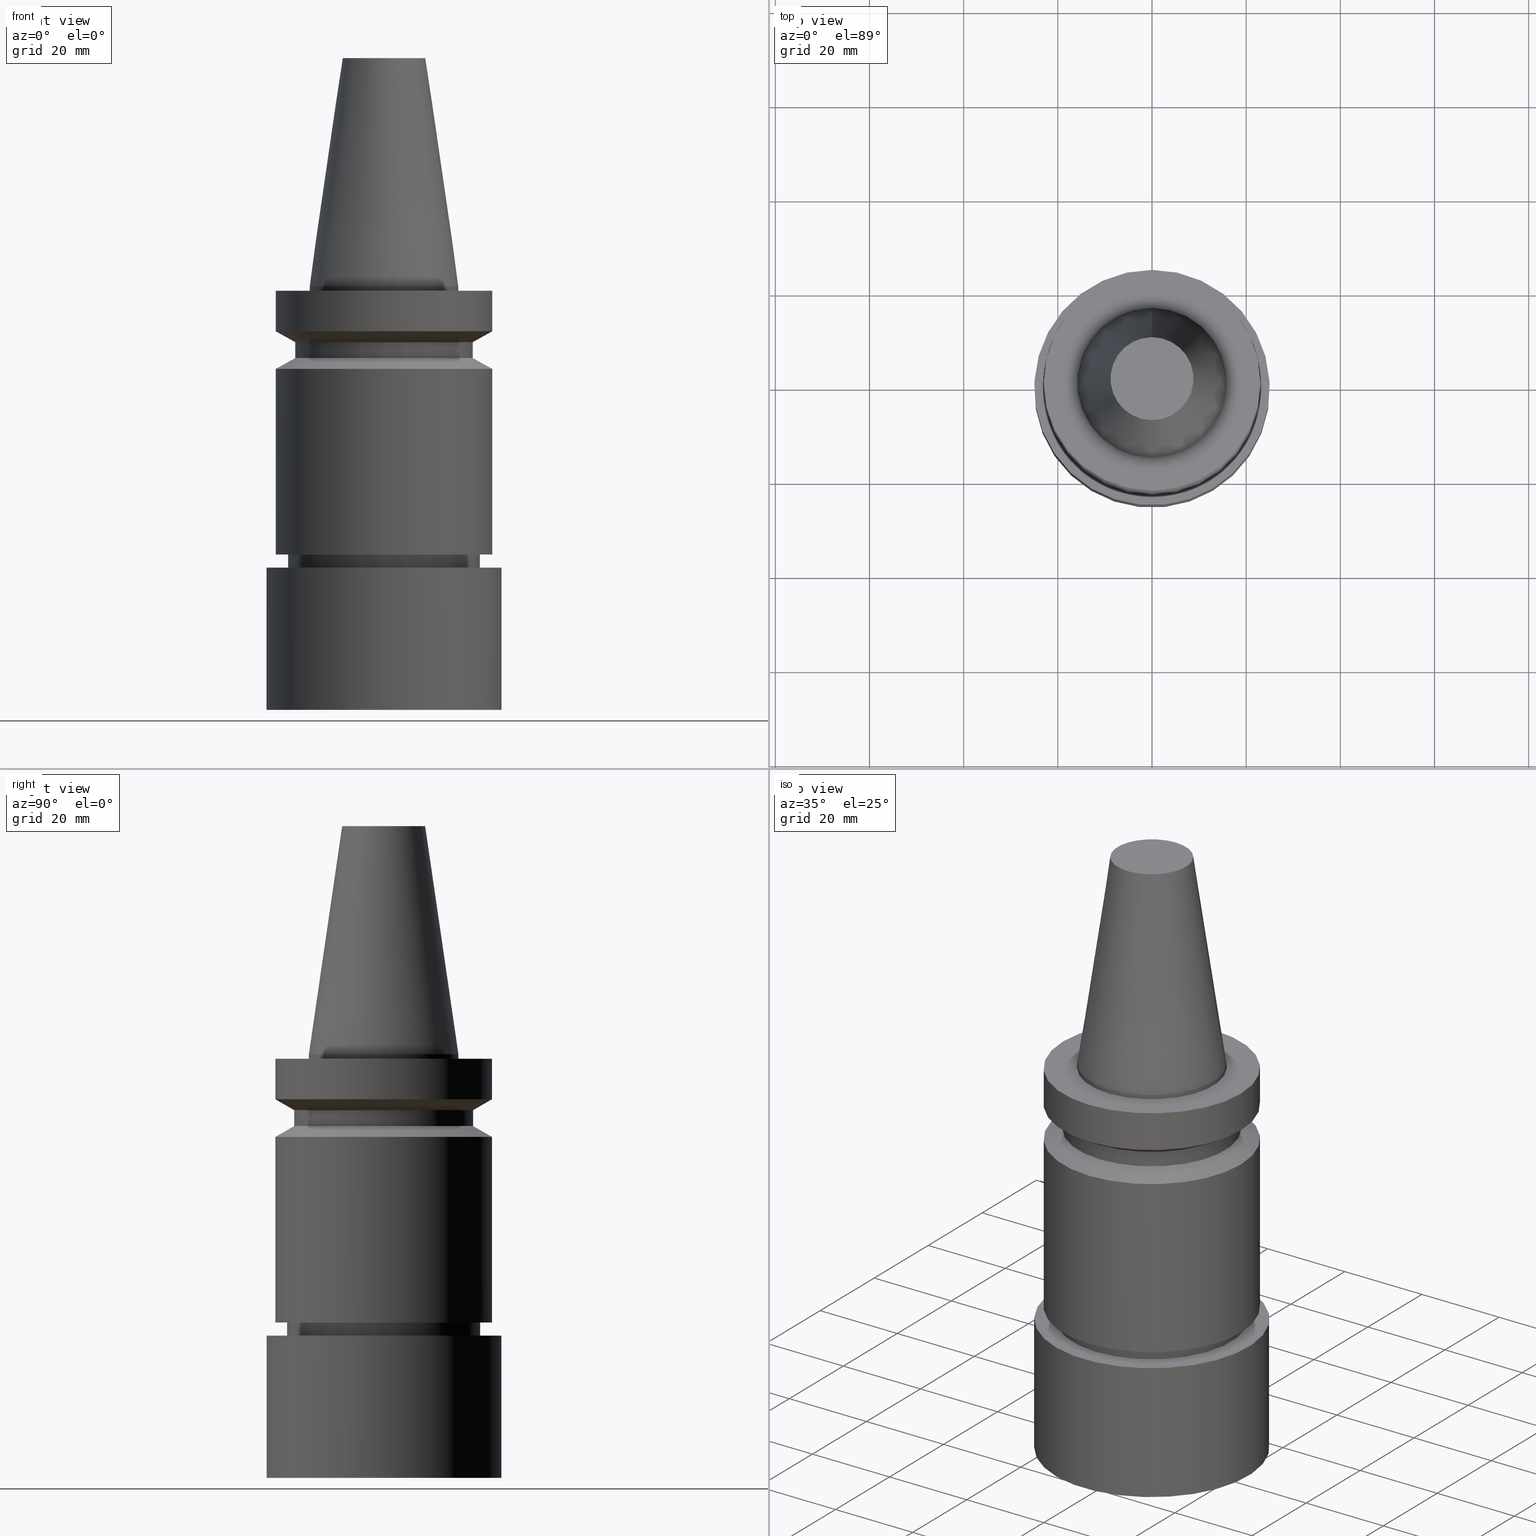
[diagram: canonical four-view strip — front | top / right | iso, engineering-drawing reading convention]
A machine part, canonical four-view strip (front | top / right | iso — engineering-drawing reading convention). The complete STEP part file that produces these views, byte-faithful:
ISO-10303-21;
HEADER;
FILE_DESCRIPTION((''),'1');
FILE_NAME('V:/90_\X2\53D65F9730C730FC30BF\X0\/00_\X2\6DE18DEF30C730FC30BF\X0\/ALL/BBT-BKUS\X2\FF76FF80FF9BFF78FF9E752852A05DE556F3\X0\201801/BBT30-MEGAER/BBT30-MEGAER32-90NL.stp','2018-02-02T07:34:31',(''),(''),'Spatial Interop R21 SP3','Kubotek KeyCreator 2011 V10.0.2 (22737)',' ');
FILE_SCHEMA(('automotive_design'));
ENDSEC;
DATA;
#1=MECHANICAL_DESIGN_GEOMETRIC_PRESENTATION_REPRESENTATION(' ',(#14,#15,#16,#17,#18,#19,#20,#21,#22,#23,#24,#25,#26,#27,#28,#29,#30,#31,#32,#33,#34,#35,#36,#37,#38,#39,#40,#41,#42,#43,#44,#45,#46,#47,#48,#49),#10);
#2=PRODUCT_DEFINITION_CONTEXT('',#50,'design');
#3=APPLICATION_PROTOCOL_DEFINITION('INTERNATIONAL STANDARD','automotive_design',1994,#50);
#4=PRODUCT_CATEGORY_RELATIONSHIP('NONE','NONE',#51,#52);
#5=SHAPE_DEFINITION_REPRESENTATION(#53,#54);
#6=PRODUCT_DEFINITION_CONTEXT('',#55,'design');
#7=APPLICATION_PROTOCOL_DEFINITION('INTERNATIONAL STANDARD','automotive_design',1994,#55);
#8=PRODUCT_CATEGORY_RELATIONSHIP('NONE','NONE',#56,#57);
#9=SHAPE_DEFINITION_REPRESENTATION(#58,#59);
#10= (GEOMETRIC_REPRESENTATION_CONTEXT(3)GLOBAL_UNCERTAINTY_ASSIGNED_CONTEXT((#62))GLOBAL_UNIT_ASSIGNED_CONTEXT((#64,#65,#66))REPRESENTATION_CONTEXT('NONE','WORKSPACE'));
#14=STYLED_ITEM('',(#68,#69),#70);
#15=STYLED_ITEM('',(#71,#72),#73);
#16=STYLED_ITEM('',(#74),#75);
#17=STYLED_ITEM('',(#76),#77);
#18=STYLED_ITEM('',(#78,#79),#80);
#19=STYLED_ITEM('',(#81),#82);
#20=STYLED_ITEM('',(#83,#84),#85);
#21=STYLED_ITEM('',(#86,#87),#88);
#22=STYLED_ITEM('',(#89,#90),#91);
#23=STYLED_ITEM('',(#92,#93),#94);
#24=STYLED_ITEM('',(#95,#96),#97);
#25=STYLED_ITEM('',(#98,#99),#100);
#26=STYLED_ITEM('',(#101,#102),#103);
#27=STYLED_ITEM('',(#104),#105);
#28=STYLED_ITEM('',(#106,#107),#108);
#29=STYLED_ITEM('',(#109),#110);
#30=STYLED_ITEM('',(#111),#112);
#31=STYLED_ITEM('',(#113,#114),#115);
#32=STYLED_ITEM('',(#116),#117);
#33=STYLED_ITEM('',(#118),#119);
#34=STYLED_ITEM('',(#120,#121),#122);
#35=STYLED_ITEM('',(#123),#124);
#36=STYLED_ITEM('',(#125),#126);
#37=STYLED_ITEM('',(#127,#128),#129);
#38=STYLED_ITEM('',(#130),#131);
#39=STYLED_ITEM('',(#132),#133);
#40=STYLED_ITEM('',(#134),#135);
#41=STYLED_ITEM('',(#136,#137),#138);
#42=STYLED_ITEM('',(#139,#140),#141);
#43=STYLED_ITEM('',(#142),#143);
#44=STYLED_ITEM('',(#144),#145);
#45=STYLED_ITEM('',(#146),#147);
#46=STYLED_ITEM('',(#148,#149),#150);
#47=STYLED_ITEM('',(#151,#152),#153);
#48=STYLED_ITEM('',(#154,#155),#156);
#49=STYLED_ITEM('',(#157,#158),#159);
#50=APPLICATION_CONTEXT(' ');
#51=PRODUCT_CATEGORY('part','NONE');
#52=PRODUCT_RELATED_PRODUCT_CATEGORY('detail',' ',(#160));
#53=PRODUCT_DEFINITION_SHAPE('NONE','NONE',#161);
#54=ADVANCED_BREP_SHAPE_REPRESENTATION('Unnamed[1]',(#150,#162),#10);
#55=APPLICATION_CONTEXT(' ');
#56=PRODUCT_CATEGORY('part','NONE');
#57=PRODUCT_RELATED_PRODUCT_CATEGORY('detail',' ',(#163));
#58=PRODUCT_DEFINITION_SHAPE('NONE','NONE',#164);
#59=ADVANCED_BREP_SHAPE_REPRESENTATION('Unnamed[1]',(#156,#165),#10);
#62=UNCERTAINTY_MEASURE_WITH_UNIT(LENGTH_MEASURE(1.0E-006),#64,'','');
#64= (CONVERSION_BASED_UNIT('MILLIMETRE',#168)LENGTH_UNIT()NAMED_UNIT(#171));
#65= (NAMED_UNIT(#173)PLANE_ANGLE_UNIT()SI_UNIT($,.RADIAN.));
#66= (NAMED_UNIT(#173)SOLID_ANGLE_UNIT()SI_UNIT($,.STERADIAN.));
#68=PRESENTATION_STYLE_ASSIGNMENT((#179));
#69=PRESENTATION_STYLE_ASSIGNMENT((#180));
#70=ADVANCED_FACE('Unnamed[1]',(#181,#182),#183,.T.);
#71=PRESENTATION_STYLE_ASSIGNMENT((#184));
#72=PRESENTATION_STYLE_ASSIGNMENT((#185));
#73=ADVANCED_FACE('Unnamed[1]',(#186,#187),#188,.T.);
#74=PRESENTATION_STYLE_ASSIGNMENT((#189));
#75=EDGE_CURVE('Unnamed[1]',#190,#190,#191,.T.);
#76=PRESENTATION_STYLE_ASSIGNMENT((#192));
#77=EDGE_CURVE('Unnamed[1]',#193,#193,#194,.T.);
#78=PRESENTATION_STYLE_ASSIGNMENT((#195));
#79=PRESENTATION_STYLE_ASSIGNMENT((#196));
#80=ADVANCED_FACE('Unnamed[1]',(#197),#198,.T.);
#81=PRESENTATION_STYLE_ASSIGNMENT((#199));
#82=EDGE_CURVE('Unnamed[1]',#200,#200,#201,.T.);
#83=PRESENTATION_STYLE_ASSIGNMENT((#202));
#84=PRESENTATION_STYLE_ASSIGNMENT((#203));
#85=ADVANCED_FACE('Unnamed[1]',(#204,#205),#206,.T.);
#86=PRESENTATION_STYLE_ASSIGNMENT((#207));
#87=PRESENTATION_STYLE_ASSIGNMENT((#208));
#88=ADVANCED_FACE('Unnamed[1]',(#209,#210),#211,.T.);
#89=PRESENTATION_STYLE_ASSIGNMENT((#212));
#90=PRESENTATION_STYLE_ASSIGNMENT((#213));
#91=ADVANCED_FACE('Unnamed[1]',(#214,#215),#216,.T.);
#92=PRESENTATION_STYLE_ASSIGNMENT((#217));
#93=PRESENTATION_STYLE_ASSIGNMENT((#218));
#94=ADVANCED_FACE('Unnamed[1]',(#219),#220,.T.);
#95=PRESENTATION_STYLE_ASSIGNMENT((#221));
#96=PRESENTATION_STYLE_ASSIGNMENT((#222));
#97=ADVANCED_FACE('Unnamed[1]',(#223,#224),#225,.T.);
#98=PRESENTATION_STYLE_ASSIGNMENT((#226));
#99=PRESENTATION_STYLE_ASSIGNMENT((#227));
#100=ADVANCED_FACE('Unnamed[1]',(#228,#229),#230,.T.);
#101=PRESENTATION_STYLE_ASSIGNMENT((#231));
#102=PRESENTATION_STYLE_ASSIGNMENT((#232));
#103=ADVANCED_FACE('Unnamed[1]',(#233,#234),#235,.T.);
#104=PRESENTATION_STYLE_ASSIGNMENT((#236));
#105=EDGE_CURVE('Unnamed[1]',#237,#237,#238,.T.);
#106=PRESENTATION_STYLE_ASSIGNMENT((#239));
#107=PRESENTATION_STYLE_ASSIGNMENT((#240));
#108=ADVANCED_FACE('Unnamed[1]',(#241),#242,.T.);
#109=PRESENTATION_STYLE_ASSIGNMENT((#243));
#110=EDGE_CURVE('Unnamed[1]',#244,#244,#245,.T.);
#111=PRESENTATION_STYLE_ASSIGNMENT((#246));
#112=EDGE_CURVE('Unnamed[1]',#247,#247,#248,.T.);
#113=PRESENTATION_STYLE_ASSIGNMENT((#249));
#114=PRESENTATION_STYLE_ASSIGNMENT((#250));
#115=ADVANCED_FACE('Unnamed[1]',(#251,#252),#253,.T.);
#116=PRESENTATION_STYLE_ASSIGNMENT((#254));
#117=EDGE_CURVE('Unnamed[1]',#255,#255,#256,.T.);
#118=PRESENTATION_STYLE_ASSIGNMENT((#257));
#119=EDGE_CURVE('Unnamed[1]',#258,#258,#259,.T.);
#120=PRESENTATION_STYLE_ASSIGNMENT((#260));
#121=PRESENTATION_STYLE_ASSIGNMENT((#261));
#122=ADVANCED_FACE('Unnamed[1]',(#262,#263),#264,.T.);
#123=PRESENTATION_STYLE_ASSIGNMENT((#265));
#124=EDGE_CURVE('Unnamed[1]',#266,#266,#267,.T.);
#125=PRESENTATION_STYLE_ASSIGNMENT((#268));
#126=EDGE_CURVE('Unnamed[1]',#269,#269,#270,.T.);
#127=PRESENTATION_STYLE_ASSIGNMENT((#271));
#128=PRESENTATION_STYLE_ASSIGNMENT((#272));
#129=ADVANCED_FACE('Unnamed[1]',(#273,#274),#275,.T.);
#130=PRESENTATION_STYLE_ASSIGNMENT((#276));
#131=EDGE_CURVE('Unnamed[1]',#277,#277,#278,.T.);
#132=PRESENTATION_STYLE_ASSIGNMENT((#279));
#133=EDGE_CURVE('Unnamed[1]',#280,#280,#281,.T.);
#134=PRESENTATION_STYLE_ASSIGNMENT((#282));
#135=EDGE_CURVE('Unnamed[1]',#283,#283,#284,.T.);
#136=PRESENTATION_STYLE_ASSIGNMENT((#285));
#137=PRESENTATION_STYLE_ASSIGNMENT((#286));
#138=ADVANCED_FACE('Unnamed[1]',(#287,#288),#289,.T.);
#139=PRESENTATION_STYLE_ASSIGNMENT((#290));
#140=PRESENTATION_STYLE_ASSIGNMENT((#291));
#141=ADVANCED_FACE('Unnamed[1]',(#292),#293,.T.);
#142=PRESENTATION_STYLE_ASSIGNMENT((#294));
#143=EDGE_CURVE('Unnamed[1]',#295,#295,#296,.T.);
#144=PRESENTATION_STYLE_ASSIGNMENT((#297));
#145=EDGE_CURVE('Unnamed[1]',#298,#298,#299,.T.);
#146=PRESENTATION_STYLE_ASSIGNMENT((#300));
#147=EDGE_CURVE('Unnamed[1]',#301,#301,#302,.T.);
#148=PRESENTATION_STYLE_ASSIGNMENT((#303));
#149=PRESENTATION_STYLE_ASSIGNMENT((#304));
#150=MANIFOLD_SOLID_BREP('Unnamed[1]',#305);
#151=PRESENTATION_STYLE_ASSIGNMENT((#306));
#152=PRESENTATION_STYLE_ASSIGNMENT((#307));
#153=ADVANCED_FACE('Unnamed[1]',(#308,#309),#310,.T.);
#154=PRESENTATION_STYLE_ASSIGNMENT((#311));
#155=PRESENTATION_STYLE_ASSIGNMENT((#312));
#156=MANIFOLD_SOLID_BREP('Unnamed[1]',#313);
#157=PRESENTATION_STYLE_ASSIGNMENT((#314));
#158=PRESENTATION_STYLE_ASSIGNMENT((#315));
#159=ADVANCED_FACE('Unnamed[1]',(#316,#317),#318,.T.);
#160=PRODUCT('Unnamed[1]','Unnamed[1]','PART-Unnamed[1]-DESC',(#319));
#161=PRODUCT_DEFINITION('NONE','NONE',#320,#2);
#162=AXIS2_PLACEMENT_3D('',#321,#322,#323);
#163=PRODUCT('Unnamed[1]','Unnamed[1]','PART-Unnamed[1]-DESC',(#324));
#164=PRODUCT_DEFINITION('NONE','NONE',#325,#6);
#165=AXIS2_PLACEMENT_3D('',#326,#327,#328);
#168=LENGTH_MEASURE_WITH_UNIT(LENGTH_MEASURE(1.0),#329);
#171=DIMENSIONAL_EXPONENTS(1.0,0.0,0.0,0.0,0.0,0.0,0.0);
#173=DIMENSIONAL_EXPONENTS(0.0,0.0,0.0,0.0,0.0,0.0,0.0);
#179=SURFACE_STYLE_USAGE(.BOTH.,#330);
#180=CURVE_STYLE('',#331,POSITIVE_LENGTH_MEASURE(1000.0),#332);
#181=FACE_BOUND('',#333,.T.);
#182=FACE_BOUND('',#334,.T.);
#183=CYLINDRICAL_SURFACE('',#335,23.0);
#184=SURFACE_STYLE_USAGE(.BOTH.,#336);
#185=CURVE_STYLE('',#337,POSITIVE_LENGTH_MEASURE(1000.0),#338);
#186=FACE_BOUND('',#339,.T.);
#187=FACE_BOUND('',#340,.T.);
#188=CYLINDRICAL_SURFACE('',#341,20.4999999999961);
#189=CURVE_STYLE('',#342,POSITIVE_LENGTH_MEASURE(1000.0),#343);
#190=VERTEX_POINT('',#344);
#191=CIRCLE('',#345,20.0);
#192=CURVE_STYLE('',#346,POSITIVE_LENGTH_MEASURE(1000.0),#347);
#193=VERTEX_POINT('',#348);
#194=CIRCLE('',#349,18.8999999999996);
#195=SURFACE_STYLE_USAGE(.BOTH.,#350);
#196=CURVE_STYLE('',#351,POSITIVE_LENGTH_MEASURE(1000.0),#352);
#197=FACE_OUTER_BOUND('',#353,.T.);
#198=PLANE('',#354);
#199=CURVE_STYLE('',#355,POSITIVE_LENGTH_MEASURE(1000.0),#356);
#200=VERTEX_POINT('',#357);
#201=CIRCLE('',#358,25.0);
#202=SURFACE_STYLE_USAGE(.BOTH.,#359);
#203=CURVE_STYLE('',#360,POSITIVE_LENGTH_MEASURE(1000.0),#361);
#204=FACE_BOUND('',#362,.T.);
#205=FACE_BOUND('',#363,.T.);
#206=CYLINDRICAL_SURFACE('',#364,23.0);
#207=SURFACE_STYLE_USAGE(.BOTH.,#365);
#208=CURVE_STYLE('',#366,POSITIVE_LENGTH_MEASURE(1000.0),#367);
#209=FACE_BOUND('',#368,.T.);
#210=FACE_BOUND('',#369,.T.);
#211=CYLINDRICAL_SURFACE('',#370,20.0000000000001);
#212=SURFACE_STYLE_USAGE(.BOTH.,#371);
#213=CURVE_STYLE('',#372,POSITIVE_LENGTH_MEASURE(1000.0),#373);
#214=FACE_BOUND('',#374,.T.);
#215=FACE_BOUND('',#375,.T.);
#216=CYLINDRICAL_SURFACE('',#376,19.0);
#217=SURFACE_STYLE_USAGE(.BOTH.,#377);
#218=CURVE_STYLE('',#378,POSITIVE_LENGTH_MEASURE(1000.0),#379);
#219=FACE_OUTER_BOUND('',#380,.T.);
#220=PLANE('',#381);
#221=SURFACE_STYLE_USAGE(.BOTH.,#382);
#222=CURVE_STYLE('',#383,POSITIVE_LENGTH_MEASURE(1000.0),#384);
#223=FACE_BOUND('',#385,.T.);
#224=FACE_BOUND('',#386,.T.);
#225=CONICAL_SURFACE('',#387,19.4499999999998,0.523598775598219);
#226=SURFACE_STYLE_USAGE(.BOTH.,#388);
#227=CURVE_STYLE('',#389,POSITIVE_LENGTH_MEASURE(1000.0),#390);
#228=FACE_BOUND('',#391,.T.);
#229=FACE_BOUND('',#392,.T.);
#230=CYLINDRICAL_SURFACE('',#393,25.0);
#231=SURFACE_STYLE_USAGE(.BOTH.,#394);
#232=CURVE_STYLE('',#395,POSITIVE_LENGTH_MEASURE(1000.0),#396);
#233=FACE_BOUND('',#397,.T.);
#234=FACE_BOUND('',#398,.T.);
#235=CONICAL_SURFACE('',#399,21.0,1.04719755058881);
#236=CURVE_STYLE('',#400,POSITIVE_LENGTH_MEASURE(1000.0),#401);
#237=VERTEX_POINT('',#402);
#238=CIRCLE('',#403,19.0);
#239=SURFACE_STYLE_USAGE(.BOTH.,#404);
#240=CURVE_STYLE('',#405,POSITIVE_LENGTH_MEASURE(1000.0),#406);
#241=FACE_OUTER_BOUND('',#407,.T.);
#242=PLANE('',#408);
#243=CURVE_STYLE('',#409,POSITIVE_LENGTH_MEASURE(1000.0),#410);
#244=VERTEX_POINT('',#411);
#245=CIRCLE('',#412,15.875);
#246=CURVE_STYLE('',#413,POSITIVE_LENGTH_MEASURE(1000.0),#414);
#247=VERTEX_POINT('',#415);
#248=CIRCLE('',#416,23.0);
#249=SURFACE_STYLE_USAGE(.BOTH.,#417);
#250=CURVE_STYLE('',#418,POSITIVE_LENGTH_MEASURE(1000.0),#419);
#251=FACE_BOUND('',#420,.T.);
#252=FACE_OUTER_BOUND('',#421,.T.);
#253=PLANE('',#422);
#254=CURVE_STYLE('',#423,POSITIVE_LENGTH_MEASURE(1000.0),#424);
#255=VERTEX_POINT('',#425);
#256=CIRCLE('',#426,8.81650000198669);
#257=CURVE_STYLE('',#427,POSITIVE_LENGTH_MEASURE(1000.0),#428);
#258=VERTEX_POINT('',#429);
#259=CIRCLE('',#430,23.0);
#260=SURFACE_STYLE_USAGE(.BOTH.,#431);
#261=CURVE_STYLE('',#432,POSITIVE_LENGTH_MEASURE(1000.0),#433);
#262=FACE_BOUND('',#434,.T.);
#263=FACE_BOUND('',#435,.T.);
#264=CONICAL_SURFACE('',#436,12.3457500009933,0.144815870013618);
#265=CURVE_STYLE('',#437,POSITIVE_LENGTH_MEASURE(1000.0),#438);
#266=VERTEX_POINT('',#439);
#267=CIRCLE('',#440,25.0);
#268=CURVE_STYLE('',#441,POSITIVE_LENGTH_MEASURE(1000.0),#442);
#269=VERTEX_POINT('',#443);
#270=CIRCLE('',#444,23.0);
#271=SURFACE_STYLE_USAGE(.BOTH.,#445);
#272=CURVE_STYLE('',#446,POSITIVE_LENGTH_MEASURE(1000.0),#447);
#273=FACE_BOUND('',#448,.T.);
#274=FACE_BOUND('',#449,.T.);
#275=CYLINDRICAL_SURFACE('',#450,15.875);
#276=CURVE_STYLE('',#451,POSITIVE_LENGTH_MEASURE(1000.0),#452);
#277=VERTEX_POINT('',#453);
#278=CIRCLE('',#454,20.4999999999911);
#279=CURVE_STYLE('',#455,POSITIVE_LENGTH_MEASURE(1000.0),#456);
#280=VERTEX_POINT('',#457);
#281=CIRCLE('',#458,15.875);
#282=CURVE_STYLE('',#459,POSITIVE_LENGTH_MEASURE(1000.0),#460);
#283=VERTEX_POINT('',#461);
#284=CIRCLE('',#462,20.0000000000001);
#285=SURFACE_STYLE_USAGE(.BOTH.,#463);
#286=CURVE_STYLE('',#464,POSITIVE_LENGTH_MEASURE(1000.0),#465);
#287=FACE_BOUND('',#466,.T.);
#288=FACE_BOUND('',#467,.T.);
#289=CONICAL_SURFACE('',#468,21.0,1.04719755058882);
#290=SURFACE_STYLE_USAGE(.BOTH.,#469);
#291=CURVE_STYLE('',#470,POSITIVE_LENGTH_MEASURE(1000.0),#471);
#292=FACE_OUTER_BOUND('',#472,.T.);
#293=PLANE('',#473);
#294=CURVE_STYLE('',#474,POSITIVE_LENGTH_MEASURE(1000.0),#475);
#295=VERTEX_POINT('',#476);
#296=CIRCLE('',#477,19.0);
#297=CURVE_STYLE('',#478,POSITIVE_LENGTH_MEASURE(1000.0),#479);
#298=VERTEX_POINT('',#480);
#299=CIRCLE('',#481,23.0);
#300=CURVE_STYLE('',#482,POSITIVE_LENGTH_MEASURE(1000.0),#483);
#301=VERTEX_POINT('',#484);
#302=CIRCLE('',#485,20.5000000000012);
#303=SURFACE_STYLE_USAGE(.BOTH.,#486);
#304=CURVE_STYLE('',#487,POSITIVE_LENGTH_MEASURE(1000.0),#488);
#305=CLOSED_SHELL('',(#94,#122,#129,#159,#70,#103,#91,#138,#85,#115,#73,#153,#88,#97,#141));
#306=SURFACE_STYLE_USAGE(.BOTH.,#489);
#307=CURVE_STYLE('',#490,POSITIVE_LENGTH_MEASURE(1000.0),#491);
#308=FACE_BOUND('',#492,.T.);
#309=FACE_BOUND('',#493,.T.);
#310=CONICAL_SURFACE('',#494,20.2500000000006,1.04719755120247);
#311=SURFACE_STYLE_USAGE(.BOTH.,#495);
#312=CURVE_STYLE('',#496,POSITIVE_LENGTH_MEASURE(1000.0),#497);
#313=CLOSED_SHELL('',(#108,#80,#100));
#314=SURFACE_STYLE_USAGE(.BOTH.,#498);
#315=CURVE_STYLE('',#499,POSITIVE_LENGTH_MEASURE(1000.0),#500);
#316=FACE_OUTER_BOUND('',#501,.T.);
#317=FACE_BOUND('',#502,.T.);
#318=PLANE('',#503);
#319=PRODUCT_CONTEXT('',#50,'mechanical');
#320=PRODUCT_DEFINITION_FORMATION_WITH_SPECIFIED_SOURCE(' ','NONE',#160,.NOT_KNOWN.);
#321=CARTESIAN_POINT('',(0.0,0.0,0.0));
#322=DIRECTION('',(0.0,0.0,1.0));
#323=DIRECTION('',(1.0,0.0,0.0));
#324=PRODUCT_CONTEXT('',#55,'mechanical');
#325=PRODUCT_DEFINITION_FORMATION_WITH_SPECIFIED_SOURCE(' ','NONE',#163,.NOT_KNOWN.);
#326=CARTESIAN_POINT('',(0.0,0.0,0.0));
#327=DIRECTION('',(0.0,0.0,1.0));
#328=DIRECTION('',(1.0,0.0,0.0));
#329= (NAMED_UNIT(#171)LENGTH_UNIT()SI_UNIT(.MILLI.,.METRE.));
#330=SURFACE_SIDE_STYLE('',(#505));
#331=DRAUGHTING_PRE_DEFINED_CURVE_FONT('continuous');
#332=COLOUR_RGB('',0.0,1.0,0.0);
#333=EDGE_LOOP('',(#506));
#334=EDGE_LOOP('',(#507));
#335=AXIS2_PLACEMENT_3D('',#508,#509,#510);
#336=SURFACE_SIDE_STYLE('',(#511));
#337=DRAUGHTING_PRE_DEFINED_CURVE_FONT('continuous');
#338=COLOUR_RGB('',0.0,1.0,0.0);
#339=EDGE_LOOP('',(#512));
#340=EDGE_LOOP('',(#513));
#341=AXIS2_PLACEMENT_3D('',#514,#515,#516);
#342=DRAUGHTING_PRE_DEFINED_CURVE_FONT('continuous');
#343=COLOUR_RGB('',0.0,1.0,0.0);
#344=CARTESIAN_POINT('',(3.88826323563546E-015,20.0,-63.5001575693926));
#345=AXIS2_PLACEMENT_3D('',#517,#518,#519);
#346=DRAUGHTING_PRE_DEFINED_CURVE_FONT('continuous');
#347=COLOUR_RGB('',0.0,1.0,0.0);
#348=CARTESIAN_POINT('',(4.83735485663206E-015,18.8999999999996,-79.0000000000003));
#349=AXIS2_PLACEMENT_3D('',#520,#521,#522);
#350=SURFACE_SIDE_STYLE('',(#523));
#351=DRAUGHTING_PRE_DEFINED_CURVE_FONT('continuous');
#352=COLOUR_RGB('',0.0,1.0,0.0);
#353=EDGE_LOOP('',(#524));
#354=AXIS2_PLACEMENT_3D('',#525,#526,#527);
#355=DRAUGHTING_PRE_DEFINED_CURVE_FONT('continuous');
#356=COLOUR_RGB('',0.0,1.0,0.0);
#357=CARTESIAN_POINT('',(5.51091059616309E-015,25.0,-90.0));
#358=AXIS2_PLACEMENT_3D('',#528,#529,#530);
#359=SURFACE_SIDE_STYLE('',(#531));
#360=DRAUGHTING_PRE_DEFINED_CURVE_FONT('continuous');
#361=COLOUR_RGB('',0.0,1.0,0.0);
#362=EDGE_LOOP('',(#532));
#363=EDGE_LOOP('',(#533));
#364=AXIS2_PLACEMENT_3D('',#534,#535,#536);
#365=SURFACE_SIDE_STYLE('',(#537));
#366=DRAUGHTING_PRE_DEFINED_CURVE_FONT('continuous');
#367=COLOUR_RGB('',0.0,1.0,0.0);
#368=EDGE_LOOP('',(#538));
#369=EDGE_LOOP('',(#539));
#370=AXIS2_PLACEMENT_3D('',#540,#541,#542);
#371=SURFACE_SIDE_STYLE('',(#543));
#372=DRAUGHTING_PRE_DEFINED_CURVE_FONT('continuous');
#373=COLOUR_RGB('',0.0,1.0,0.0);
#374=EDGE_LOOP('',(#544));
#375=EDGE_LOOP('',(#545));
#376=AXIS2_PLACEMENT_3D('',#546,#547,#548);
#377=SURFACE_SIDE_STYLE('',(#549));
#378=DRAUGHTING_PRE_DEFINED_CURVE_FONT('continuous');
#379=COLOUR_RGB('',0.0,1.0,0.0);
#380=EDGE_LOOP('',(#550));
#381=AXIS2_PLACEMENT_3D('',#551,#552,#553);
#382=SURFACE_SIDE_STYLE('',(#554));
#383=DRAUGHTING_PRE_DEFINED_CURVE_FONT('continuous');
#384=COLOUR_RGB('',0.0,1.0,0.0);
#385=EDGE_LOOP('',(#555));
#386=EDGE_LOOP('',(#556));
#387=AXIS2_PLACEMENT_3D('',#557,#558,#559);
#388=SURFACE_SIDE_STYLE('',(#560));
#389=DRAUGHTING_PRE_DEFINED_CURVE_FONT('continuous');
#390=COLOUR_RGB('',0.0,1.0,0.0);
#391=EDGE_LOOP('',(#561));
#392=EDGE_LOOP('',(#562));
#393=AXIS2_PLACEMENT_3D('',#563,#564,#565);
#394=SURFACE_SIDE_STYLE('',(#566));
#395=DRAUGHTING_PRE_DEFINED_CURVE_FONT('continuous');
#396=COLOUR_RGB('',0.0,1.0,0.0);
#397=EDGE_LOOP('',(#567));
#398=EDGE_LOOP('',(#568));
#399=AXIS2_PLACEMENT_3D('',#569,#570,#571);
#400=DRAUGHTING_PRE_DEFINED_CURVE_FONT('continuous');
#401=COLOUR_RGB('',0.0,1.0,0.0);
#402=CARTESIAN_POINT('',(9.36279151221199E-016,19.0,-15.29059892));
#403=AXIS2_PLACEMENT_3D('',#572,#573,#574);
#404=SURFACE_SIDE_STYLE('',(#575));
#405=DRAUGHTING_PRE_DEFINED_CURVE_FONT('continuous');
#406=COLOUR_RGB('',0.0,1.0,0.0);
#407=EDGE_LOOP('',(#576));
#408=AXIS2_PLACEMENT_3D('',#577,#578,#579);
#409=DRAUGHTING_PRE_DEFINED_CURVE_FONT('continuous');
#410=COLOUR_RGB('',0.0,1.0,0.0);
#411=CARTESIAN_POINT('',(-1.95674482349743E-031,15.875,1.94412679364642E-015));
#412=AXIS2_PLACEMENT_3D('',#580,#581,#582);
#413=DRAUGHTING_PRE_DEFINED_CURVE_FONT('continuous');
#414=COLOUR_RGB('',0.0,1.0,0.0);
#415=CARTESIAN_POINT('',(3.49025302591328E-015,23.0,-57.0001575694042));
#416=AXIS2_PLACEMENT_3D('',#583,#584,#585);
#417=SURFACE_SIDE_STYLE('',(#586));
#418=DRAUGHTING_PRE_DEFINED_CURVE_FONT('continuous');
#419=COLOUR_RGB('',0.0,1.0,0.0);
#420=EDGE_LOOP('',(#587));
#421=EDGE_LOOP('',(#588));
#422=AXIS2_PLACEMENT_3D('',#589,#590,#591);
#423=DRAUGHTING_PRE_DEFINED_CURVE_FONT('continuous');
#424=COLOUR_RGB('',0.0,1.0,0.0);
#425=CARTESIAN_POINT('',(-2.96364525393659E-015,8.81650000198669,48.4));
#426=AXIS2_PLACEMENT_3D('',#592,#593,#594);
#427=DRAUGHTING_PRE_DEFINED_CURVE_FONT('continuous');
#428=COLOUR_RGB('',0.0,1.0,0.0);
#429=CARTESIAN_POINT('',(1.07768918324967E-015,23.0,-17.6));
#430=AXIS2_PLACEMENT_3D('',#595,#596,#597);
#431=SURFACE_SIDE_STYLE('',(#598));
#432=DRAUGHTING_PRE_DEFINED_CURVE_FONT('continuous');
#433=COLOUR_RGB('',0.0,1.0,0.0);
#434=EDGE_LOOP('',(#599));
#435=EDGE_LOOP('',(#600));
#436=AXIS2_PLACEMENT_3D('',#601,#602,#603);
#437=DRAUGHTING_PRE_DEFINED_CURVE_FONT('continuous');
#438=COLOUR_RGB('',0.0,1.0,0.0);
#439=CARTESIAN_POINT('',(3.66169392945059E-015,25.0,-59.8));
#440=AXIS2_PLACEMENT_3D('',#604,#605,#606);
#441=DRAUGHTING_PRE_DEFINED_CURVE_FONT('continuous');
#442=COLOUR_RGB('',0.0,1.0,0.0);
#443=CARTESIAN_POINT('',(6.12323399573674E-017,23.0,-0.999999999999997));
#444=AXIS2_PLACEMENT_3D('',#607,#608,#609);
#445=SURFACE_SIDE_STYLE('',(#610));
#446=DRAUGHTING_PRE_DEFINED_CURVE_FONT('continuous');
#447=COLOUR_RGB('',0.0,1.0,0.0);
#448=EDGE_LOOP('',(#611));
#449=EDGE_LOOP('',(#612));
#450=AXIS2_PLACEMENT_3D('',#613,#614,#615);
#451=DRAUGHTING_PRE_DEFINED_CURVE_FONT('continuous');
#452=COLOUR_RGB('',0.0,1.0,0.0);
#453=CARTESIAN_POINT('',(3.49025302591329E-015,20.4999999999911,-57.0001575694044));
#454=AXIS2_PLACEMENT_3D('',#616,#617,#618);
#455=DRAUGHTING_PRE_DEFINED_CURVE_FONT('continuous');
#456=COLOUR_RGB('',0.0,1.0,0.0);
#457=CARTESIAN_POINT('',(6.12323399573675E-017,15.875,-0.999999999999998));
#458=AXIS2_PLACEMENT_3D('',#619,#620,#621);
#459=DRAUGHTING_PRE_DEFINED_CURVE_FONT('continuous');
#460=COLOUR_RGB('',0.0,1.0,0.0);
#461=CARTESIAN_POINT('',(4.72069158037225E-015,20.0000000000001,-77.0947441116734));
#462=AXIS2_PLACEMENT_3D('',#622,#623,#624);
#463=SURFACE_SIDE_STYLE('',(#625));
#464=DRAUGHTING_PRE_DEFINED_CURVE_FONT('continuous');
#465=COLOUR_RGB('',0.0,1.0,0.0);
#466=EDGE_LOOP('',(#626));
#467=EDGE_LOOP('',(#627));
#468=AXIS2_PLACEMENT_3D('',#628,#629,#630);
#469=SURFACE_SIDE_STYLE('',(#631));
#470=DRAUGHTING_PRE_DEFINED_CURVE_FONT('continuous');
#471=COLOUR_RGB('',0.0,1.0,0.0);
#472=EDGE_LOOP('',(#632));
#473=AXIS2_PLACEMENT_3D('',#633,#634,#635);
#474=DRAUGHTING_PRE_DEFINED_CURVE_FONT('continuous');
#475=COLOUR_RGB('',0.0,1.0,0.0);
#476=CARTESIAN_POINT('',(7.29240495619202E-016,19.0,-11.90940108));
#477=AXIS2_PLACEMENT_3D('',#636,#637,#638);
#478=DRAUGHTING_PRE_DEFINED_CURVE_FONT('continuous');
#479=COLOUR_RGB('',0.0,1.0,0.0);
#480=CARTESIAN_POINT('',(5.87830463590729E-016,23.0,-9.59999999999999));
#481=AXIS2_PLACEMENT_3D('',#639,#640,#641);
#482=DRAUGHTING_PRE_DEFINED_CURVE_FONT('continuous');
#483=COLOUR_RGB('',0.0,1.0,0.0);
#484=CARTESIAN_POINT('',(3.87058698165691E-015,20.5000000000012,-63.211482434801));
#485=AXIS2_PLACEMENT_3D('',#642,#643,#644);
#486=SURFACE_SIDE_STYLE('',(#645));
#487=DRAUGHTING_PRE_DEFINED_CURVE_FONT('continuous');
#488=COLOUR_RGB('',0.0,1.0,0.0);
#489=SURFACE_SIDE_STYLE('',(#646));
#490=DRAUGHTING_PRE_DEFINED_CURVE_FONT('continuous');
#491=COLOUR_RGB('',0.0,1.0,0.0);
#492=EDGE_LOOP('',(#647));
#493=EDGE_LOOP('',(#648));
#494=AXIS2_PLACEMENT_3D('',#649,#650,#651);
#495=SURFACE_SIDE_STYLE('',(#652));
#496=DRAUGHTING_PRE_DEFINED_CURVE_FONT('continuous');
#497=COLOUR_RGB('',0.0,1.0,0.0);
#498=SURFACE_SIDE_STYLE('',(#653));
#499=DRAUGHTING_PRE_DEFINED_CURVE_FONT('continuous');
#500=COLOUR_RGB('',0.0,1.0,0.0);
#501=EDGE_LOOP('',(#654));
#502=EDGE_LOOP('',(#655));
#503=AXIS2_PLACEMENT_3D('',#656,#657,#658);
#505=SURFACE_STYLE_FILL_AREA(#659);
#506=ORIENTED_EDGE('',*,*,#145,.F.);
#507=ORIENTED_EDGE('',*,*,#126,.T.);
#508=CARTESIAN_POINT('',(3.24531401774048E-016,6.49062803548097E-016,-5.3));
#509=DIRECTION('',(6.12323399573677E-017,1.22464679914735E-016,-1.0));
#510=DIRECTION('',(-1.23259516440783E-032,1.0,1.22464679914735E-016));
#511=SURFACE_STYLE_FILL_AREA(#660);
#512=ORIENTED_EDGE('',*,*,#147,.F.);
#513=ORIENTED_EDGE('',*,*,#131,.T.);
#514=CARTESIAN_POINT('',(3.6804200037851E-015,7.3608400075702E-015,-60.1058200021027));
#515=DIRECTION('',(6.12323399573677E-017,1.22464679914735E-016,-1.0));
#516=DIRECTION('',(-1.23259516440783E-032,1.0,1.22464679914735E-016));
#517=CARTESIAN_POINT('',(3.88826323563546E-015,7.77652647127091E-015,-63.5001575693926));
#518=DIRECTION('',(6.12323399573677E-017,1.22464679914735E-016,-1.0));
#519=DIRECTION('',(-1.23259516440783E-032,1.0,1.22464679914735E-016));
#520=CARTESIAN_POINT('',(4.83735485663206E-015,9.67470971326413E-015,-79.0000000000003));
#521=DIRECTION('',(6.12323399573677E-017,1.22464679914735E-016,-1.0));
#522=DIRECTION('',(-1.23259516440783E-032,1.0,1.22464679914735E-016));
#523=SURFACE_STYLE_FILL_AREA(#661);
#524=ORIENTED_EDGE('',*,*,#124,.F.);
#525=CARTESIAN_POINT('',(3.66169392945059E-015,12.5,-59.8));
#526=DIRECTION('',(-6.12323399573677E-017,-1.22464679914735E-016,1.0));
#527=DIRECTION('',(1.23259516440783E-032,-1.0,-1.22464679914735E-016));
#528=CARTESIAN_POINT('',(5.51091059616309E-015,1.10218211923262E-014,-90.0));
#529=DIRECTION('',(6.12323399573677E-017,1.22464679914735E-016,-1.0));
#530=DIRECTION('',(-1.23259516440783E-032,1.0,1.22464679914735E-016));
#531=SURFACE_STYLE_FILL_AREA(#662);
#532=ORIENTED_EDGE('',*,*,#112,.F.);
#533=ORIENTED_EDGE('',*,*,#119,.T.);
#534=CARTESIAN_POINT('',(2.28397110458148E-015,4.56794220916295E-015,-37.3000787847021));
#535=DIRECTION('',(6.12323399573677E-017,1.22464679914735E-016,-1.0));
#536=DIRECTION('',(-1.23259516440783E-032,1.0,1.22464679914735E-016));
#537=SURFACE_STYLE_FILL_AREA(#663);
#538=ORIENTED_EDGE('',*,*,#135,.F.);
#539=ORIENTED_EDGE('',*,*,#75,.T.);
#540=CARTESIAN_POINT('',(4.30447740800386E-015,8.60895481600771E-015,-70.297450840533));
#541=DIRECTION('',(6.12323399573677E-017,1.22464679914735E-016,-1.0));
#542=DIRECTION('',(-1.23259516440783E-032,1.0,1.22464679914735E-016));
#543=SURFACE_STYLE_FILL_AREA(#664);
#544=ORIENTED_EDGE('',*,*,#105,.F.);
#545=ORIENTED_EDGE('',*,*,#143,.T.);
#546=CARTESIAN_POINT('',(8.32759823420201E-016,1.6655196468404E-015,-13.6));
#547=DIRECTION('',(6.12323399573677E-017,1.22464679914735E-016,-1.0));
#548=DIRECTION('',(-1.23259516440783E-032,1.0,1.22464679914735E-016));
#549=SURFACE_STYLE_FILL_AREA(#665);
#550=ORIENTED_EDGE('',*,*,#117,.F.);
#551=CARTESIAN_POINT('',(-2.96364525393659E-015,4.40825000099334,48.4));
#552=DIRECTION('',(-6.12323399573677E-017,-1.22464679914735E-016,1.0));
#553=DIRECTION('',(1.23259516440783E-032,-1.0,-1.22464679914735E-016));
#554=SURFACE_STYLE_FILL_AREA(#666);
#555=ORIENTED_EDGE('',*,*,#77,.F.);
#556=ORIENTED_EDGE('',*,*,#135,.T.);
#557=CARTESIAN_POINT('',(4.77902321850216E-015,9.55804643700432E-015,-78.0473720558369));
#558=DIRECTION('',(-6.12323399573676E-017,-1.22464679914735E-016,1.0));
#559=DIRECTION('',(-1.23259516440783E-032,1.0,1.22464679914735E-016));
#560=SURFACE_STYLE_FILL_AREA(#667);
#561=ORIENTED_EDGE('',*,*,#82,.F.);
#562=ORIENTED_EDGE('',*,*,#124,.T.);
#563=CARTESIAN_POINT('',(4.58630226280684E-015,9.17260452561367E-015,-74.9));
#564=DIRECTION('',(6.12323399573677E-017,1.22464679914735E-016,-1.0));
#565=DIRECTION('',(-1.23259516440783E-032,1.0,1.22464679914735E-016));
#566=SURFACE_STYLE_FILL_AREA(#668);
#567=ORIENTED_EDGE('',*,*,#143,.F.);
#568=ORIENTED_EDGE('',*,*,#145,.T.);
#569=CARTESIAN_POINT('',(6.58535479604966E-016,1.31707095920993E-015,-10.75470054));
#570=DIRECTION('',(-6.12323399573677E-017,-1.22464679914735E-016,1.0));
#571=DIRECTION('',(-1.23259516440783E-032,1.0,1.22464679914735E-016));
#572=CARTESIAN_POINT('',(9.36279151221199E-016,1.8725583024424E-015,-15.29059892));
#573=DIRECTION('',(6.12323399573677E-017,1.22464679914735E-016,-1.0));
#574=DIRECTION('',(-1.23259516440783E-032,1.0,1.22464679914735E-016));
#575=SURFACE_STYLE_FILL_AREA(#669);
#576=ORIENTED_EDGE('',*,*,#82,.T.);
#577=CARTESIAN_POINT('',(5.51091059616309E-015,12.5,-90.0));
#578=DIRECTION('',(6.12323399573677E-017,1.22464679914735E-016,-1.0));
#579=DIRECTION('',(-1.23259516440783E-032,1.0,1.22464679914735E-016));
#580=CARTESIAN_POINT('',(0.0,0.0,0.0));
#581=DIRECTION('',(6.12323399573677E-017,1.22464679914735E-016,-1.0));
#582=DIRECTION('',(-1.23259516440783E-032,1.0,1.22464679914735E-016));
#583=CARTESIAN_POINT('',(3.49025302591328E-015,6.98050605182656E-015,-57.0001575694042));
#584=DIRECTION('',(6.12323399573677E-017,1.22464679914735E-016,-1.0));
#585=DIRECTION('',(-1.23259516440783E-032,1.0,1.22464679914735E-016));
#586=SURFACE_STYLE_FILL_AREA(#670);
#587=ORIENTED_EDGE('',*,*,#131,.F.);
#588=ORIENTED_EDGE('',*,*,#112,.T.);
#589=CARTESIAN_POINT('',(3.49025302591329E-015,21.7499999999956,-57.0001575694043));
#590=DIRECTION('',(6.12323399573677E-017,6.5492396369611E-014,-1.0));
#591=DIRECTION('',(-4.01507983185746E-030,1.0,6.5492396369611E-014));
#592=CARTESIAN_POINT('',(-2.96364525393659E-015,-5.92729050787319E-015,48.4));
#593=DIRECTION('',(6.12323399573677E-017,1.22464679914735E-016,-1.0));
#594=DIRECTION('',(-1.23259516440783E-032,1.0,1.22464679914735E-016));
#595=CARTESIAN_POINT('',(1.07768918324967E-015,2.15537836649934E-015,-17.6));
#596=DIRECTION('',(6.12323399573677E-017,1.22464679914735E-016,-1.0));
#597=DIRECTION('',(-1.23259516440783E-032,1.0,1.22464679914735E-016));
#598=SURFACE_STYLE_FILL_AREA(#671);
#599=ORIENTED_EDGE('',*,*,#110,.F.);
#600=ORIENTED_EDGE('',*,*,#117,.T.);
#601=CARTESIAN_POINT('',(-1.4818226269683E-015,-2.96364525393659E-015,24.2));
#602=DIRECTION('',(6.12323399573677E-017,1.22464679914735E-016,-1.0));
#603=DIRECTION('',(-1.23259516440783E-032,1.0,1.22464679914735E-016));
#604=CARTESIAN_POINT('',(3.66169392945059E-015,7.32338785890117E-015,-59.8));
#605=DIRECTION('',(6.12323399573677E-017,1.22464679914735E-016,-1.0));
#606=DIRECTION('',(-1.23259516440783E-032,1.0,1.22464679914735E-016));
#607=CARTESIAN_POINT('',(6.12323399573677E-017,1.22464679914735E-016,-1.0));
#608=DIRECTION('',(6.12323399573677E-017,1.22464679914735E-016,-1.0));
#609=DIRECTION('',(-1.23259516440783E-032,1.0,1.22464679914735E-016));
#610=SURFACE_STYLE_FILL_AREA(#672);
#611=ORIENTED_EDGE('',*,*,#133,.F.);
#612=ORIENTED_EDGE('',*,*,#110,.T.);
#613=CARTESIAN_POINT('',(3.06161699786838E-017,6.12323399573676E-017,-0.5));
#614=DIRECTION('',(6.12323399573677E-017,1.22464679914735E-016,-1.0));
#615=DIRECTION('',(-1.23259516440783E-032,1.0,1.22464679914735E-016));
#616=CARTESIAN_POINT('',(3.49025302591329E-015,6.98050605182658E-015,-57.0001575694044));
#617=DIRECTION('',(6.12323399573677E-017,1.22464679914735E-016,-1.0));
#618=DIRECTION('',(-1.23259516440783E-032,1.0,1.22464679914735E-016));
#619=CARTESIAN_POINT('',(6.12323399573677E-017,1.22464679914735E-016,-1.0));
#620=DIRECTION('',(6.12323399573677E-017,1.22464679914735E-016,-1.0));
#621=DIRECTION('',(-1.23259516440783E-032,1.0,1.22464679914735E-016));
#622=CARTESIAN_POINT('',(4.72069158037225E-015,9.44138316074451E-015,-77.0947441116734));
#623=DIRECTION('',(6.12323399573677E-017,1.22464679914735E-016,-1.0));
#624=DIRECTION('',(-1.23259516440783E-032,1.0,1.22464679914735E-016));
#625=SURFACE_STYLE_FILL_AREA(#673);
#626=ORIENTED_EDGE('',*,*,#119,.F.);
#627=ORIENTED_EDGE('',*,*,#105,.T.);
#628=CARTESIAN_POINT('',(1.00698416723543E-015,2.01396833447087E-015,-16.44529946));
#629=DIRECTION('',(6.12323399573677E-017,1.22464679914735E-016,-1.0));
#630=DIRECTION('',(-1.23259516440783E-032,1.0,1.22464679914735E-016));
#631=SURFACE_STYLE_FILL_AREA(#674);
#632=ORIENTED_EDGE('',*,*,#77,.T.);
#633=CARTESIAN_POINT('',(4.83735485663206E-015,9.44999999999981,-79.0000000000002));
#634=DIRECTION('',(6.12323399573677E-017,-1.49154768176538E-014,-1.0));
#635=DIRECTION('',(9.08482394394047E-031,1.0,-1.49154768176538E-014));
#636=CARTESIAN_POINT('',(7.29240495619202E-016,1.4584809912384E-015,-11.90940108));
#637=DIRECTION('',(6.12323399573677E-017,1.22464679914735E-016,-1.0));
#638=DIRECTION('',(-1.23259516440783E-032,1.0,1.22464679914735E-016));
#639=CARTESIAN_POINT('',(5.87830463590729E-016,1.17566092718146E-015,-9.59999999999999));
#640=DIRECTION('',(6.12323399573677E-017,1.22464679914735E-016,-1.0));
#641=DIRECTION('',(-1.23259516440783E-032,1.0,1.22464679914735E-016));
#642=CARTESIAN_POINT('',(3.87058698165691E-015,7.74117396331382E-015,-63.211482434801));
#643=DIRECTION('',(6.12323399573677E-017,1.22464679914735E-016,-1.0));
#644=DIRECTION('',(-1.23259516440783E-032,1.0,1.22464679914735E-016));
#645=SURFACE_STYLE_FILL_AREA(#675);
#646=SURFACE_STYLE_FILL_AREA(#676);
#647=ORIENTED_EDGE('',*,*,#75,.F.);
#648=ORIENTED_EDGE('',*,*,#147,.T.);
#649=CARTESIAN_POINT('',(3.87942510864618E-015,7.75885021729237E-015,-63.3558200020968));
#650=DIRECTION('',(-6.12323399573677E-017,-1.22464679914735E-016,1.0));
#651=DIRECTION('',(-1.23259516440783E-032,1.0,1.22464679914735E-016));
#652=SURFACE_STYLE_FILL_AREA(#677);
#653=SURFACE_STYLE_FILL_AREA(#678);
#654=ORIENTED_EDGE('',*,*,#126,.F.);
#655=ORIENTED_EDGE('',*,*,#133,.T.);
#656=CARTESIAN_POINT('',(6.12323399573674E-017,19.4375,-0.999999999999998));
#657=DIRECTION('',(-6.12323399573677E-017,-1.22464679914735E-016,1.0));
#658=DIRECTION('',(1.23259516440783E-032,-1.0,-1.22464679914735E-016));
#659=FILL_AREA_STYLE('',(#679));
#660=FILL_AREA_STYLE('',(#680));
#661=FILL_AREA_STYLE('',(#681));
#662=FILL_AREA_STYLE('',(#682));
#663=FILL_AREA_STYLE('',(#683));
#664=FILL_AREA_STYLE('',(#684));
#665=FILL_AREA_STYLE('',(#685));
#666=FILL_AREA_STYLE('',(#686));
#667=FILL_AREA_STYLE('',(#687));
#668=FILL_AREA_STYLE('',(#688));
#669=FILL_AREA_STYLE('',(#689));
#670=FILL_AREA_STYLE('',(#690));
#671=FILL_AREA_STYLE('',(#691));
#672=FILL_AREA_STYLE('',(#692));
#673=FILL_AREA_STYLE('',(#693));
#674=FILL_AREA_STYLE('',(#694));
#675=FILL_AREA_STYLE('',(#695));
#676=FILL_AREA_STYLE('',(#696));
#677=FILL_AREA_STYLE('',(#697));
#678=FILL_AREA_STYLE('',(#698));
#679=FILL_AREA_STYLE_COLOUR('',#699);
#680=FILL_AREA_STYLE_COLOUR('',#700);
#681=FILL_AREA_STYLE_COLOUR('',#701);
#682=FILL_AREA_STYLE_COLOUR('',#702);
#683=FILL_AREA_STYLE_COLOUR('',#703);
#684=FILL_AREA_STYLE_COLOUR('',#704);
#685=FILL_AREA_STYLE_COLOUR('',#705);
#686=FILL_AREA_STYLE_COLOUR('',#706);
#687=FILL_AREA_STYLE_COLOUR('',#707);
#688=FILL_AREA_STYLE_COLOUR('',#708);
#689=FILL_AREA_STYLE_COLOUR('',#709);
#690=FILL_AREA_STYLE_COLOUR('',#710);
#691=FILL_AREA_STYLE_COLOUR('',#711);
#692=FILL_AREA_STYLE_COLOUR('',#712);
#693=FILL_AREA_STYLE_COLOUR('',#713);
#694=FILL_AREA_STYLE_COLOUR('',#714);
#695=FILL_AREA_STYLE_COLOUR('',#715);
#696=FILL_AREA_STYLE_COLOUR('',#716);
#697=FILL_AREA_STYLE_COLOUR('',#717);
#698=FILL_AREA_STYLE_COLOUR('',#718);
#699=COLOUR_RGB('',0.0,1.0,0.0);
#700=COLOUR_RGB('',0.0,1.0,0.0);
#701=COLOUR_RGB('',0.0,1.0,0.0);
#702=COLOUR_RGB('',0.0,1.0,0.0);
#703=COLOUR_RGB('',0.0,1.0,0.0);
#704=COLOUR_RGB('',0.0,1.0,0.0);
#705=COLOUR_RGB('',0.0,1.0,0.0);
#706=COLOUR_RGB('',0.0,1.0,0.0);
#707=COLOUR_RGB('',0.0,1.0,0.0);
#708=COLOUR_RGB('',0.0,1.0,0.0);
#709=COLOUR_RGB('',0.0,1.0,0.0);
#710=COLOUR_RGB('',0.0,1.0,0.0);
#711=COLOUR_RGB('',0.0,1.0,0.0);
#712=COLOUR_RGB('',0.0,1.0,0.0);
#713=COLOUR_RGB('',0.0,1.0,0.0);
#714=COLOUR_RGB('',0.0,1.0,0.0);
#715=COLOUR_RGB('',0.0,1.0,0.0);
#716=COLOUR_RGB('',0.0,1.0,0.0);
#717=COLOUR_RGB('',0.0,1.0,0.0);
#718=COLOUR_RGB('',0.0,1.0,0.0);
ENDSEC;
END-ISO-10303-21;
